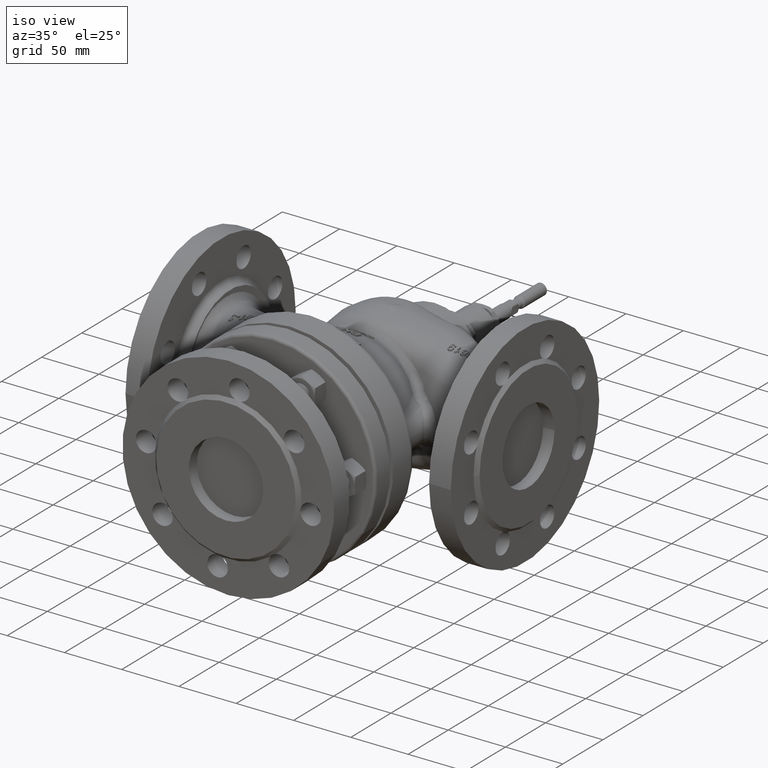
[diagram: clean part render]
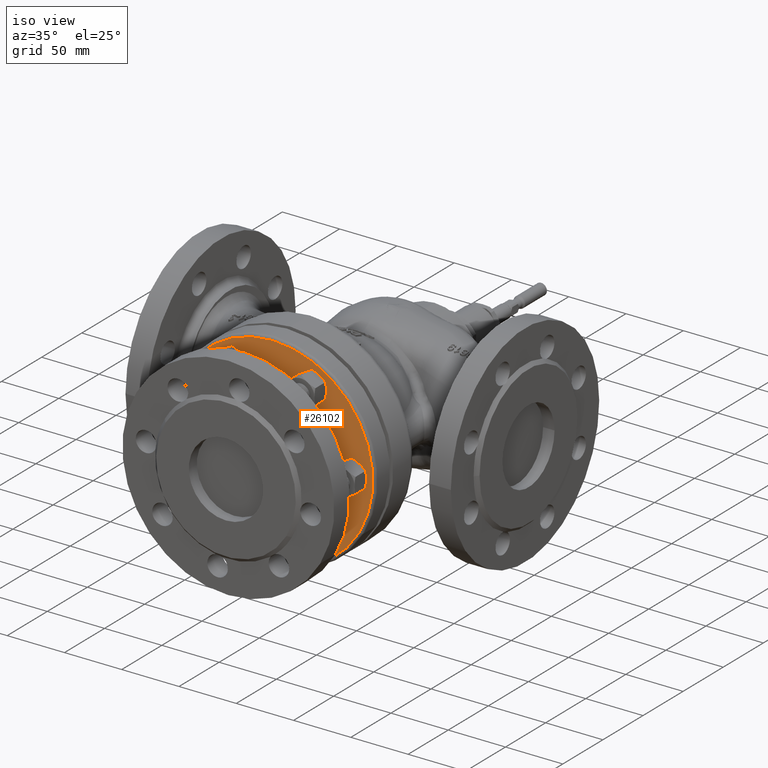
[diagram: same view with one face highlighted and labeled with its STEP entity id]
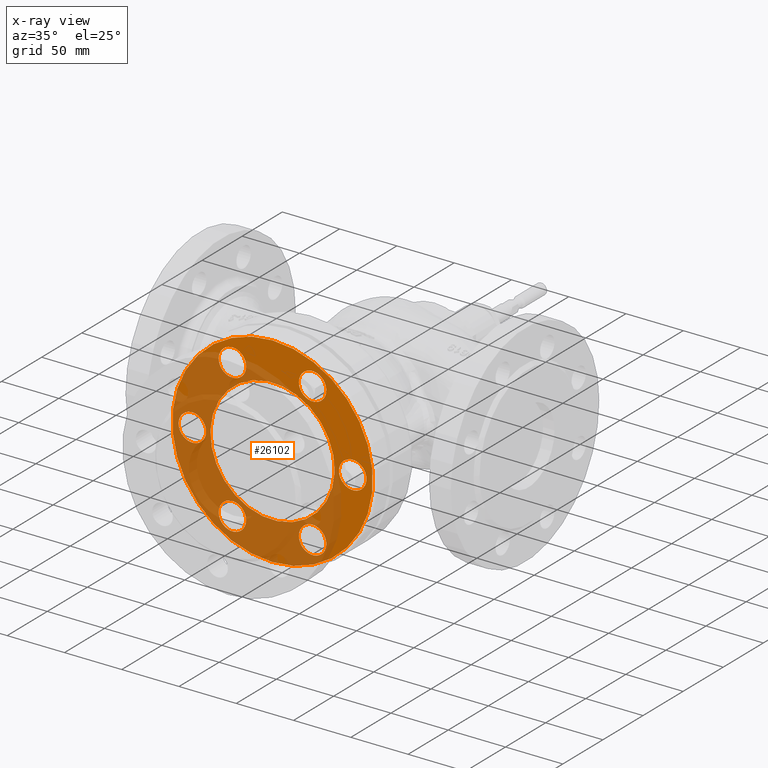
[diagram: x-ray of the same camera — body ghosted, the highlighted face saturated]
A machine part, iso view. The second image highlights one B-rep face of the part: STEP entity #26102.
The next image is the same camera in x-ray: the body ghosted, the highlighted face saturated — about 58% of this face is hidden behind the body in this view.
In plain terms, the highlighted planar face has unit normal (0, 1, -0).
Its self-contained STEP definition (entity closure, byte-faithful):
#108 = CARTESIAN_POINT ( 'NONE',  ( -46.99999999999879200, -112.0000000000000000, -60.62177826491070200 ) ) ;
#457 = DIRECTION ( 'NONE',  ( -0.0000000000000000000, -1.000000000000000000, -0.0000000000000000000 ) ) ;
#525 = CIRCLE ( 'NONE', #46967, 11.99999999999999600 ) ;
#602 = CARTESIAN_POINT ( 'NONE',  ( 22.99999999999836600, -112.0000000000000000, 60.62177826491102200 ) ) ;
#1085 = ORIENTED_EDGE ( 'NONE', *, *, #93543, .F. ) ;
#1916 = CARTESIAN_POINT ( 'NONE',  ( -41.00000000000051200, -112.0000000000000000, 50.22947341949666400 ) ) ;
#2197 = AXIS2_PLACEMENT_3D ( 'NONE', #36738, #134624, #50824 ) ;
#2554 = ORIENTED_EDGE ( 'NONE', *, *, #87627, .F. ) ;
#2987 = EDGE_CURVE ( 'NONE', #159778, #42430, #152738, .T. ) ;
#3666 = ORIENTED_EDGE ( 'NONE', *, *, #105104, .F. ) ;
#4422 = DIRECTION ( 'NONE',  ( -0.0000000000000000000, -1.000000000000000000, 0.0000000000000000000 ) ) ;
#4851 = ORIENTED_EDGE ( 'NONE', *, *, #94597, .F. ) ;
#5176 = AXIS2_PLACEMENT_3D ( 'NONE', #106320, #22536, #120403 ) ;
#5882 = CARTESIAN_POINT ( 'NONE',  ( 34.99999999999836600, -111.9999999999999900, 60.62177826491102200 ) ) ;
#6001 = ORIENTED_EDGE ( 'NONE', *, *, #78870, .F. ) ;
#6507 = DIRECTION ( 'NONE',  ( 0.0000000000000000000, -1.000000000000000000, -0.0000000000000000000 ) ) ;
#6606 = CIRCLE ( 'NONE', #8113, 87.50000000000001400 ) ;
#6634 = DIRECTION ( 'NONE',  ( -1.000000000000000000, 0.0000000000000000000, 0.0000000000000000000 ) ) ;
#7073 = DIRECTION ( 'NONE',  ( -2.506947754853350100E-039, -1.000000000000000000, 1.146559035700334400E-038 ) ) ;
#7307 = CIRCLE ( 'NONE', #158942, 11.99999999999999600 ) ;
#7461 = FACE_BOUND ( 'NONE', #23981, .T. ) ;
#7622 = ORIENTED_EDGE ( 'NONE', *, *, #10779, .T. ) ;
#7652 = CARTESIAN_POINT ( 'NONE',  ( 34.99999999999836600, -111.9999999999999900, 60.62177826491102200 ) ) ;
#8113 = AXIS2_PLACEMENT_3D ( 'NONE', #90843, #7073, #104914 ) ;
#8746 = DIRECTION ( 'NONE',  ( 2.506947754853350100E-039, 1.000000000000000000, -1.146559035700334400E-038 ) ) ;
#9015 = CIRCLE ( 'NONE', #56606, 11.99999999999999600 ) ;
#9018 = VERTEX_POINT ( 'NONE', #112770 ) ;
#9441 = AXIS2_PLACEMENT_3D ( 'NONE', #94495, #10721, #108571 ) ;
#10076 = CIRCLE ( 'NONE', #41329, 11.99999999999999600 ) ;
#10201 = VERTEX_POINT ( 'NONE', #64355 ) ;
#10721 = DIRECTION ( 'NONE',  ( -0.0000000000000000000, -1.000000000000000000, -0.0000000000000000000 ) ) ;
#10779 = EDGE_CURVE ( 'NONE', #94681, #85977, #29843, .T. ) ;
#11093 = DIRECTION ( 'NONE',  ( -0.8660254037847903200, 0.0000000000000000000, 0.4999999999993909300 ) ) ;
#11319 = CARTESIAN_POINT ( 'NONE',  ( -81.99999999999946000, -112.0000000000000000, -7.863154571907671200E-013 ) ) ;
#11722 = CARTESIAN_POINT ( 'NONE',  ( 81.99999999999944600, -112.0000000000000000, 1.359440338077888600E-012 ) ) ;
#12833 = VERTEX_POINT ( 'NONE', #139882 ) ;
#13101 = VERTEX_POINT ( 'NONE', #71353 ) ;
#13480 = VERTEX_POINT ( 'NONE', #48658 ) ;
#13977 = EDGE_CURVE ( 'NONE', #157390, #28926, #167649, .T. ) ;
#14216 = CIRCLE ( 'NONE', #68966, 11.99999999999999600 ) ;
#14502 = EDGE_CURVE ( 'NONE', #42430, #13480, #10076, .T. ) ;
#15874 = EDGE_CURVE ( 'NONE', #85977, #94681, #66937, .T. ) ;
#16148 = CIRCLE ( 'NONE', #26856, 12.00000000000000900 ) ;
#16198 = FACE_BOUND ( 'NONE', #166845, .T. ) ;
#16655 = AXIS2_PLACEMENT_3D ( 'NONE', #34897, #132780, #48984 ) ;
#17767 = CARTESIAN_POINT ( 'NONE',  ( -75.77722283116875700, -112.0000000000000000, 43.74999999994643900 ) ) ;
#17888 = ORIENTED_EDGE ( 'NONE', *, *, #113689, .F. ) ;
#18144 = DIRECTION ( 'NONE',  ( -2.506947754853350100E-039, -1.000000000000000000, 1.146559035700334400E-038 ) ) ;
#18603 = CIRCLE ( 'NONE', #22089, 12.00000000000000000 ) ;
#18849 = EDGE_CURVE ( 'NONE', #119914, #111733, #55870, .T. ) ;
#18902 = CARTESIAN_POINT ( 'NONE',  ( 35.00000000000082400, -111.9999999999999900, -60.62177826490962200 ) ) ;
#19083 = PLANE ( 'NONE',  #132987 ) ;
#19333 = EDGE_CURVE ( 'NONE', #79323, #31594, #42673, .T. ) ;
#19575 = EDGE_CURVE ( 'NONE', #41009, #159778, #71132, .T. ) ;
#19799 = ORIENTED_EDGE ( 'NONE', *, *, #67340, .F. ) ;
#19940 = DIRECTION ( 'NONE',  ( -1.000000000000000000, 0.0000000000000000000, 1.734723475976807700E-015 ) ) ;
#21046 = EDGE_LOOP ( 'NONE', ( #46899, #139596, #69963, #128662, #115450, #161318 ) ) ;
#21315 = DIRECTION ( 'NONE',  ( -0.0000000000000000000, -1.000000000000000000, 0.0000000000000000000 ) ) ;
#21700 = DIRECTION ( 'NONE',  ( -1.000000000000000000, 0.0000000000000000000, 1.734723475976807700E-015 ) ) ;
#22089 = AXIS2_PLACEMENT_3D ( 'NONE', #143515, #59738, #157580 ) ;
#22534 = EDGE_CURVE ( 'NONE', #13480, #26974, #171708, .T. ) ;
#22536 = DIRECTION ( 'NONE',  ( -0.0000000000000000000, -1.000000000000000000, 0.0000000000000000000 ) ) ;
#23981 = EDGE_LOOP ( 'NONE', ( #133127, #133520, #117780, #104564, #6001, #19799 ) ) ;
#24024 = VERTEX_POINT ( 'NONE', #32123 ) ;
#24825 = CIRCLE ( 'NONE', #46418, 12.00000000000000000 ) ;
#25632 = CARTESIAN_POINT ( 'NONE',  ( 35.00000000000082400, -111.9999999999999900, -60.62177826490962200 ) ) ;
#26019 = EDGE_CURVE ( 'NONE', #51356, #73568, #123436, .T. ) ;
#26102 = ADVANCED_FACE ( 'NONE', ( #44620, #16198, #156227, #160626, #119055, #7461, #151876, #114647 ), #19083, .F. ) ;
#26476 = CARTESIAN_POINT ( 'NONE',  ( -35.00000000000038400, -111.9999999999999900, 60.62177826490985700 ) ) ;
#26856 = AXIS2_PLACEMENT_3D ( 'NONE', #131731, #47937, #145792 ) ;
#26974 = VERTEX_POINT ( 'NONE', #109552 ) ;
#27206 = VERTEX_POINT ( 'NONE', #138898 ) ;
#28072 = CARTESIAN_POINT ( 'NONE',  ( -69.99999999999944600, -111.9999999999999900, -9.228728892196613700E-013 ) ) ;
#28444 = AXIS2_PLACEMENT_3D ( 'NONE', #92530, #8746, #106595 ) ;
#28743 = ORIENTED_EDGE ( 'NONE', *, *, #83320, .F. ) ;
#28926 = VERTEX_POINT ( 'NONE', #11319 ) ;
#29166 = DIRECTION ( 'NONE',  ( 0.0000000000000000000, -1.000000000000000000, 0.0000000000000000000 ) ) ;
#29610 = CARTESIAN_POINT ( 'NONE',  ( 34.99999999999836600, -111.9999999999999900, 60.62177826491102200 ) ) ;
#29843 = CIRCLE ( 'NONE', #38921, 54.23563836689044100 ) ;
#30073 = DIRECTION ( 'NONE',  ( -0.0000000000000000000, -1.000000000000000000, -0.0000000000000000000 ) ) ;
#30764 = VERTEX_POINT ( 'NONE', #146951 ) ;
#31594 = VERTEX_POINT ( 'NONE', #1916 ) ;
#32123 = CARTESIAN_POINT ( 'NONE',  ( 47.00000000000082400, -112.0000000000000000, -60.62177826490965800 ) ) ;
#32426 = CARTESIAN_POINT ( 'NONE',  ( 23.00000000000078500, -112.0000000000000000, -60.62177826490958000 ) ) ;
#32935 = DIRECTION ( 'NONE',  ( 0.5000000000000032200, 0.0000000000000000000, 0.8660254037844368200 ) ) ;
#33121 = DIRECTION ( 'NONE',  ( -0.8660254037847903200, 7.903875620164056200E-039, 0.4999999999993908800 ) ) ;
#34025 = CIRCLE ( 'NONE', #145044, 12.00000000000000000 ) ;
#34564 = CIRCLE ( 'NONE', #127843, 11.99999999999999800 ) ;
#34878 = EDGE_CURVE ( 'NONE', #28926, #62398, #24825, .T. ) ;
#34897 = CARTESIAN_POINT ( 'NONE',  ( 69.99999999999944600, -111.9999999999999900, 1.412064909445121000E-012 ) ) ;
#35165 = VERTEX_POINT ( 'NONE', #111991 ) ;
#35231 = CARTESIAN_POINT ( 'NONE',  ( -34.99999999999879200, -112.0000000000000000, -60.62177826491078000 ) ) ;
#35251 = ORIENTED_EDGE ( 'NONE', *, *, #34878, .F. ) ;
#35862 = CARTESIAN_POINT ( 'NONE',  ( -69.99999999999944600, -111.9999999999999900, -9.228728892196613700E-013 ) ) ;
#35932 = EDGE_CURVE ( 'NONE', #35165, #79323, #156101, .T. ) ;
#36192 = EDGE_CURVE ( 'NONE', #87908, #41009, #7307, .T. ) ;
#36502 = DIRECTION ( 'NONE',  ( 0.0000000000000000000, -1.000000000000000000, 0.0000000000000000000 ) ) ;
#36738 = CARTESIAN_POINT ( 'NONE',  ( -35.00000000000038400, -111.9999999999999900, 60.62177826490985700 ) ) ;
#38410 = VERTEX_POINT ( 'NONE', #79348 ) ;
#38921 = AXIS2_PLACEMENT_3D ( 'NONE', #178723, #94871, #11093 ) ;
#39696 = DIRECTION ( 'NONE',  ( 0.5000000000000027800, 0.0000000000000000000, 0.8660254037844370400 ) ) ;
#40236 = AXIS2_PLACEMENT_3D ( 'NONE', #35231, #133117, #49318 ) ;
#40550 = DIRECTION ( 'NONE',  ( -0.5000000000000103300, 0.0000000000000000000, -0.8660254037844326000 ) ) ;
#41009 = VERTEX_POINT ( 'NONE', #108 ) ;
#41329 = AXIS2_PLACEMENT_3D ( 'NONE', #148949, #65152, #163001 ) ;
#42165 = DIRECTION ( 'NONE',  ( 0.4999999999999912800, 0.0000000000000000000, -0.8660254037844437000 ) ) ;
#42430 = VERTEX_POINT ( 'NONE', #115475 ) ;
#42673 = CIRCLE ( 'NONE', #175102, 11.99999999999999800 ) ;
#43139 = EDGE_CURVE ( 'NONE', #10201, #35165, #120861, .T. ) ;
#43396 = EDGE_CURVE ( 'NONE', #26974, #87908, #107690, .T. ) ;
#43689 = DIRECTION ( 'NONE',  ( -1.000000000000000000, 0.0000000000000000000, 0.0000000000000000000 ) ) ;
#43886 = CARTESIAN_POINT ( 'NONE',  ( 69.99999999999944600, -111.9999999999999900, 1.412064909445121000E-012 ) ) ;
#44620 = FACE_BOUND ( 'NONE', #54913, .T. ) ;
#45603 = AXIS2_PLACEMENT_3D ( 'NONE', #82796, #180698, #96830 ) ;
#45731 = CIRCLE ( 'NONE', #138300, 11.99999999999999600 ) ;
#45873 = ORIENTED_EDGE ( 'NONE', *, *, #55534, .T. ) ;
#46116 = ORIENTED_EDGE ( 'NONE', *, *, #61657, .F. ) ;
#46418 = AXIS2_PLACEMENT_3D ( 'NONE', #153583, #69795, #167656 ) ;
#46899 = ORIENTED_EDGE ( 'NONE', *, *, #14502, .F. ) ;
#46935 = EDGE_CURVE ( 'NONE', #73568, #166094, #96595, .T. ) ;
#46967 = AXIS2_PLACEMENT_3D ( 'NONE', #174246, #90410, #6634 ) ;
#47357 = ORIENTED_EDGE ( 'NONE', *, *, #15874, .T. ) ;
#47937 = DIRECTION ( 'NONE',  ( 0.0000000000000000000, -1.000000000000000000, 0.0000000000000000000 ) ) ;
#48318 = CARTESIAN_POINT ( 'NONE',  ( -40.99999999999874200, -112.0000000000000000, -50.22947341949745200 ) ) ;
#48658 = CARTESIAN_POINT ( 'NONE',  ( -22.99999999999878900, -112.0000000000000000, -60.62177826491086600 ) ) ;
#48913 = CARTESIAN_POINT ( 'NONE',  ( 35.00000000000082400, -111.9999999999999900, -60.62177826490962200 ) ) ;
#48984 = DIRECTION ( 'NONE',  ( -0.5000000000000005600, 0.0000000000000000000, 0.8660254037844383700 ) ) ;
#49318 = DIRECTION ( 'NONE',  ( -1.000000000000000000, 0.0000000000000000000, 6.938893903907226000E-015 ) ) ;
#49954 = DIRECTION ( 'NONE',  ( 0.4999999999999935600, 0.0000000000000000000, -0.8660254037844423700 ) ) ;
#50692 = VERTEX_POINT ( 'NONE', #51608 ) ;
#50824 = DIRECTION ( 'NONE',  ( -0.5000000000000092100, 0.0000000000000000000, -0.8660254037844332700 ) ) ;
#51356 = VERTEX_POINT ( 'NONE', #92013 ) ;
#51608 = CARTESIAN_POINT ( 'NONE',  ( 29.00000000000088800, -112.0000000000000000, -50.22947341949631600 ) ) ;
#52901 = EDGE_CURVE ( 'NONE', #30764, #10201, #116105, .T. ) ;
#54817 = CIRCLE ( 'NONE', #171564, 12.00000000000000200 ) ;
#54913 = EDGE_LOOP ( 'NONE', ( #67424, #151267, #4851, #17888, #96667, #85352 ) ) ;
#55331 = CARTESIAN_POINT ( 'NONE',  ( 40.99999999999840100, -112.0000000000000000, 50.22947341949773700 ) ) ;
#55534 = EDGE_CURVE ( 'NONE', #111733, #119914, #6606, .T. ) ;
#55789 = EDGE_CURVE ( 'NONE', #62398, #51356, #72218, .T. ) ;
#55870 = CIRCLE ( 'NONE', #146924, 87.50000000000001400 ) ;
#56368 = CARTESIAN_POINT ( 'NONE',  ( 34.99999999999836600, -112.0000000000000000, 60.62177826491102200 ) ) ;
#56577 = ORIENTED_EDGE ( 'NONE', *, *, #154347, .F. ) ;
#56606 = AXIS2_PLACEMENT_3D ( 'NONE', #29610, #127508, #43689 ) ;
#57781 = CARTESIAN_POINT ( 'NONE',  ( 41.00000000000086700, -112.0000000000000000, -50.22947341949638700 ) ) ;
#57980 = DIRECTION ( 'NONE',  ( -0.4999999999999981700, 0.0000000000000000000, 0.8660254037844397100 ) ) ;
#58259 = ORIENTED_EDGE ( 'NONE', *, *, #26019, .F. ) ;
#58780 = CARTESIAN_POINT ( 'NONE',  ( 69.99999999999944600, -111.9999999999999900, 1.412064909445121000E-012 ) ) ;
#59738 = DIRECTION ( 'NONE',  ( -0.0000000000000000000, -1.000000000000000000, -0.0000000000000000000 ) ) ;
#60245 = CARTESIAN_POINT ( 'NONE',  ( -57.99999999999945300, -112.0000000000000000, -1.056446596869875500E-012 ) ) ;
#61403 = EDGE_CURVE ( 'NONE', #77398, #154143, #45731, .T. ) ;
#61579 = ORIENTED_EDGE ( 'NONE', *, *, #94856, .F. ) ;
#61657 = EDGE_CURVE ( 'NONE', #27206, #149942, #120183, .T. ) ;
#61781 = CARTESIAN_POINT ( 'NONE',  ( 69.99999999999944600, -111.9999999999999900, 1.412064909445121000E-012 ) ) ;
#62398 = VERTEX_POINT ( 'NONE', #171691 ) ;
#62976 = DIRECTION ( 'NONE',  ( 0.5000000000000050000, 0.0000000000000000000, 0.8660254037844357100 ) ) ;
#63827 = EDGE_CURVE ( 'NONE', #149942, #87588, #89423, .T. ) ;
#64355 = CARTESIAN_POINT ( 'NONE',  ( -29.00000000000027000, -112.0000000000000000, 71.01408311032305700 ) ) ;
#64363 = VERTEX_POINT ( 'NONE', #55331 ) ;
#65152 = DIRECTION ( 'NONE',  ( -0.0000000000000000000, -1.000000000000000000, 0.0000000000000000000 ) ) ;
#66562 = AXIS2_PLACEMENT_3D ( 'NONE', #35862, #133750, #49954 ) ;
#66881 = CIRCLE ( 'NONE', #66562, 11.99999999999999800 ) ;
#66937 = CIRCLE ( 'NONE', #28444, 54.23563836689044100 ) ;
#67340 = EDGE_CURVE ( 'NONE', #31594, #162007, #34564, .T. ) ;
#67424 = ORIENTED_EDGE ( 'NONE', *, *, #61403, .F. ) ;
#68966 = AXIS2_PLACEMENT_3D ( 'NONE', #5882, #103726, #19940 ) ;
#69334 = CIRCLE ( 'NONE', #16655, 11.99999999999999600 ) ;
#69795 = DIRECTION ( 'NONE',  ( -0.0000000000000000000, -1.000000000000000000, 0.0000000000000000000 ) ) ;
#69963 = ORIENTED_EDGE ( 'NONE', *, *, #19575, .F. ) ;
#70429 = DIRECTION ( 'NONE',  ( 1.000000000000000000, 0.0000000000000000000, 0.0000000000000000000 ) ) ;
#71132 = CIRCLE ( 'NONE', #40236, 12.00000000000000400 ) ;
#71353 = CARTESIAN_POINT ( 'NONE',  ( 28.99999999999834800, -112.0000000000000000, 50.22947341949777200 ) ) ;
#72218 = CIRCLE ( 'NONE', #45603, 11.99999999999999800 ) ;
#72377 = DIRECTION ( 'NONE',  ( 0.0000000000000000000, -1.000000000000000000, 0.0000000000000000000 ) ) ;
#72839 = DIRECTION ( 'NONE',  ( -0.4999999999999981700, 0.0000000000000000000, 0.8660254037844397100 ) ) ;
#73301 = ORIENTED_EDGE ( 'NONE', *, *, #107242, .F. ) ;
#73568 = VERTEX_POINT ( 'NONE', #60245 ) ;
#73781 = AXIS2_PLACEMENT_3D ( 'NONE', #56368, #154212, #70429 ) ;
#75331 = DIRECTION ( 'NONE',  ( 0.0000000000000000000, -1.000000000000000000, -0.0000000000000000000 ) ) ;
#75349 = EDGE_CURVE ( 'NONE', #87588, #38410, #69334, .T. ) ;
#75467 = CARTESIAN_POINT ( 'NONE',  ( -35.00000000000038400, -111.9999999999999900, 60.62177826490985700 ) ) ;
#75844 = DIRECTION ( 'NONE',  ( -0.4999999999999960600, 0.0000000000000000000, 0.8660254037844409300 ) ) ;
#76434 = EDGE_LOOP ( 'NONE', ( #157884, #35251, #136367, #164000, #160694, #58259 ) ) ;
#76547 = CARTESIAN_POINT ( 'NONE',  ( -34.99999999999879200, -111.9999999999999900, -60.62177826491078000 ) ) ;
#76717 = AXIS2_PLACEMENT_3D ( 'NONE', #88188, #4422, #102255 ) ;
#77398 = VERTEX_POINT ( 'NONE', #166777 ) ;
#78870 = EDGE_CURVE ( 'NONE', #162007, #30764, #165490, .T. ) ;
#79323 = VERTEX_POINT ( 'NONE', #98617 ) ;
#79348 = CARTESIAN_POINT ( 'NONE',  ( 63.99999999999947400, -112.0000000000000000, 10.39230484541468700 ) ) ;
#79882 = CIRCLE ( 'NONE', #97060, 11.99999999999999500 ) ;
#82291 = VERTEX_POINT ( 'NONE', #90140 ) ;
#82396 = DIRECTION ( 'NONE',  ( -0.0000000000000000000, -1.000000000000000000, 0.0000000000000000000 ) ) ;
#82796 = CARTESIAN_POINT ( 'NONE',  ( -69.99999999999944600, -111.9999999999999900, -9.228728892196613700E-013 ) ) ;
#83149 = AXIS2_PLACEMENT_3D ( 'NONE', #58780, #156614, #72839 ) ;
#83320 = EDGE_CURVE ( 'NONE', #38410, #105548, #34025, .T. ) ;
#84145 = EDGE_CURVE ( 'NONE', #166094, #157390, #66881, .T. ) ;
#84251 = CARTESIAN_POINT ( 'NONE',  ( 34.99999999999836600, -111.9999999999999900, 60.62177826491102200 ) ) ;
#85352 = ORIENTED_EDGE ( 'NONE', *, *, #118792, .F. ) ;
#85977 = VERTEX_POINT ( 'NONE', #178537 ) ;
#86367 = AXIS2_PLACEMENT_3D ( 'NONE', #26476, #124376, #40550 ) ;
#86838 = EDGE_CURVE ( 'NONE', #118823, #50692, #18603, .T. ) ;
#87363 = EDGE_CURVE ( 'NONE', #9018, #77398, #14216, .T. ) ;
#87588 = VERTEX_POINT ( 'NONE', #106155 ) ;
#87627 = EDGE_CURVE ( 'NONE', #82291, #27206, #79882, .T. ) ;
#87908 = VERTEX_POINT ( 'NONE', #48318 ) ;
#88188 = CARTESIAN_POINT ( 'NONE',  ( -69.99999999999944600, -111.9999999999999900, -9.228728892196613700E-013 ) ) ;
#89423 = CIRCLE ( 'NONE', #9441, 12.00000000000000000 ) ;
#89504 = DIRECTION ( 'NONE',  ( -0.5000000000000103300, 0.0000000000000000000, -0.8660254037844326000 ) ) ;
#90140 = CARTESIAN_POINT ( 'NONE',  ( 63.99999999999941700, -112.0000000000000000, -10.39230484541188000 ) ) ;
#90275 = CARTESIAN_POINT ( 'NONE',  ( -35.00000000000038400, -111.9999999999999900, 60.62177826490985700 ) ) ;
#90410 = DIRECTION ( 'NONE',  ( -0.0000000000000000000, -1.000000000000000000, -0.0000000000000000000 ) ) ;
#90569 = CIRCLE ( 'NONE', #83149, 12.00000000000000000 ) ;
#90594 = DIRECTION ( 'NONE',  ( 1.000000000000000000, 0.0000000000000000000, -8.673617379884038600E-015 ) ) ;
#90843 = CARTESIAN_POINT ( 'NONE',  ( 4.024558463747165400E-013, -112.0000000000000000, -2.697495006043932700E-013 ) ) ;
#90944 = VERTEX_POINT ( 'NONE', #156213 ) ;
#92013 = CARTESIAN_POINT ( 'NONE',  ( -63.99999999999954500, -112.0000000000000000, -10.39230484541423900 ) ) ;
#92530 = CARTESIAN_POINT ( 'NONE',  ( 4.024558463747165400E-013, -112.0000000000000000, -2.697495006043932700E-013 ) ) ;
#93543 = EDGE_CURVE ( 'NONE', #12833, #90944, #16148, .T. ) ;
#94495 = CARTESIAN_POINT ( 'NONE',  ( 69.99999999999944600, -111.9999999999999900, 1.412064909445121000E-012 ) ) ;
#94597 = EDGE_CURVE ( 'NONE', #109978, #9018, #136574, .T. ) ;
#94681 = VERTEX_POINT ( 'NONE', #141958 ) ;
#94856 = EDGE_CURVE ( 'NONE', #105548, #82291, #90569, .T. ) ;
#94871 = DIRECTION ( 'NONE',  ( 2.506947754853350100E-039, 1.000000000000000000, -1.146559035700334400E-038 ) ) ;
#96595 = CIRCLE ( 'NONE', #109910, 11.99999999999999800 ) ;
#96667 = ORIENTED_EDGE ( 'NONE', *, *, #102135, .F. ) ;
#96830 = DIRECTION ( 'NONE',  ( 0.4999999999999959500, 0.0000000000000000000, -0.8660254037844410400 ) ) ;
#97060 = AXIS2_PLACEMENT_3D ( 'NONE', #61781, #159618, #75844 ) ;
#98096 = AXIS2_PLACEMENT_3D ( 'NONE', #120317, #36502, #134390 ) ;
#98303 = DIRECTION ( 'NONE',  ( -1.000000000000000000, 0.0000000000000000000, -1.734723475976807700E-015 ) ) ;
#98617 = CARTESIAN_POINT ( 'NONE',  ( -47.00000000000039100, -112.0000000000000000, 60.62177826490998500 ) ) ;
#101417 = ORIENTED_EDGE ( 'NONE', *, *, #86838, .F. ) ;
#101921 = CARTESIAN_POINT ( 'NONE',  ( 4.024558463747165400E-013, -112.0000000000000000, -2.697495006043932700E-013 ) ) ;
#102135 = EDGE_CURVE ( 'NONE', #13101, #64363, #525, .T. ) ;
#102255 = DIRECTION ( 'NONE',  ( 0.4999999999999923900, 0.0000000000000000000, -0.8660254037844431500 ) ) ;
#102371 = EDGE_LOOP ( 'NONE', ( #47357, #7622 ) ) ;
#103726 = DIRECTION ( 'NONE',  ( -0.0000000000000000000, -1.000000000000000000, -0.0000000000000000000 ) ) ;
#104349 = DIRECTION ( 'NONE',  ( -0.5000000000000103300, 0.0000000000000000000, -0.8660254037844326000 ) ) ;
#104564 = ORIENTED_EDGE ( 'NONE', *, *, #52901, .F. ) ;
#104914 = DIRECTION ( 'NONE',  ( -0.8660254037847903200, 0.0000000000000000000, 0.4999999999993909900 ) ) ;
#105098 = CARTESIAN_POINT ( 'NONE',  ( -34.99999999999879200, -111.9999999999999900, -60.62177826491078000 ) ) ;
#105104 = EDGE_CURVE ( 'NONE', #90944, #24024, #133943, .T. ) ;
#105492 = DIRECTION ( 'NONE',  ( -0.0000000000000000000, -1.000000000000000000, -0.0000000000000000000 ) ) ;
#105548 = VERTEX_POINT ( 'NONE', #121818 ) ;
#106155 = CARTESIAN_POINT ( 'NONE',  ( 75.99999999999946000, -112.0000000000000000, 10.39230484541467300 ) ) ;
#106320 = CARTESIAN_POINT ( 'NONE',  ( -34.99999999999879200, -111.9999999999999900, -60.62177826491078000 ) ) ;
#106595 = DIRECTION ( 'NONE',  ( -0.8660254037847903200, 0.0000000000000000000, 0.4999999999993909300 ) ) ;
#107242 = EDGE_CURVE ( 'NONE', #24024, #118823, #149196, .T. ) ;
#107690 = CIRCLE ( 'NONE', #116863, 11.99999999999999600 ) ;
#108571 = DIRECTION ( 'NONE',  ( -0.4999999999999958400, 0.0000000000000000000, 0.8660254037844410400 ) ) ;
#109139 = AXIS2_PLACEMENT_3D ( 'NONE', #113882, #30073, #127964 ) ;
#109552 = CARTESIAN_POINT ( 'NONE',  ( -28.99999999999869600, -112.0000000000000000, -50.22947341949757300 ) ) ;
#109910 = AXIS2_PLACEMENT_3D ( 'NONE', #28072, #125960, #42165 ) ;
#109978 = VERTEX_POINT ( 'NONE', #119480 ) ;
#111733 = VERTEX_POINT ( 'NONE', #17767 ) ;
#111991 = CARTESIAN_POINT ( 'NONE',  ( -41.00000000000024200, -112.0000000000000000, 71.01408311032321300 ) ) ;
#112373 = AXIS2_PLACEMENT_3D ( 'NONE', #18902, #116751, #32935 ) ;
#112770 = CARTESIAN_POINT ( 'NONE',  ( 40.99999999999838700, -112.0000000000000000, 71.01408311032426500 ) ) ;
#112989 = CARTESIAN_POINT ( 'NONE',  ( 69.99999999999944600, -112.0000000000000000, 1.412064909445121000E-012 ) ) ;
#113689 = EDGE_CURVE ( 'NONE', #64363, #109978, #149235, .T. ) ;
#113882 = CARTESIAN_POINT ( 'NONE',  ( 35.00000000000082400, -111.9999999999999900, -60.62177826490962200 ) ) ;
#114647 = FACE_BOUND ( 'NONE', #21046, .T. ) ;
#115450 = ORIENTED_EDGE ( 'NONE', *, *, #43396, .F. ) ;
#115475 = CARTESIAN_POINT ( 'NONE',  ( -28.99999999999884200, -112.0000000000000000, -71.01408311032409400 ) ) ;
#116003 = DIRECTION ( 'NONE',  ( -0.8660254037847903200, 0.0000000000000000000, 0.4999999999993909900 ) ) ;
#116105 = CIRCLE ( 'NONE', #2197, 11.99999999999999600 ) ;
#116751 = DIRECTION ( 'NONE',  ( -0.0000000000000000000, -1.000000000000000000, -0.0000000000000000000 ) ) ;
#116863 = AXIS2_PLACEMENT_3D ( 'NONE', #166182, #82396, #180301 ) ;
#116935 = DIRECTION ( 'NONE',  ( 2.506947754857786300E-039, 1.000000000000000000, -1.146559035700590400E-038 ) ) ;
#117000 = ORIENTED_EDGE ( 'NONE', *, *, #18849, .T. ) ;
#117780 = ORIENTED_EDGE ( 'NONE', *, *, #43139, .F. ) ;
#118792 = EDGE_CURVE ( 'NONE', #154143, #13101, #9015, .T. ) ;
#118823 = VERTEX_POINT ( 'NONE', #57781 ) ;
#119055 = FACE_BOUND ( 'NONE', #102371, .T. ) ;
#119176 = DIRECTION ( 'NONE',  ( 1.000000000000000000, 0.0000000000000000000, -6.938893903907230700E-015 ) ) ;
#119480 = CARTESIAN_POINT ( 'NONE',  ( 46.99999999999837300, -112.0000000000000000, 60.62177826491102200 ) ) ;
#119914 = VERTEX_POINT ( 'NONE', #123887 ) ;
#120183 = CIRCLE ( 'NONE', #147698, 12.00000000000000200 ) ;
#120317 = CARTESIAN_POINT ( 'NONE',  ( -35.00000000000038400, -112.0000000000000000, 60.62177826490985700 ) ) ;
#120403 = DIRECTION ( 'NONE',  ( 1.000000000000000000, 0.0000000000000000000, -6.938893903907230700E-015 ) ) ;
#120861 = CIRCLE ( 'NONE', #98096, 12.00000000000000900 ) ;
#121818 = CARTESIAN_POINT ( 'NONE',  ( 57.99999999999945300, -112.0000000000000000, 1.462371890248448400E-012 ) ) ;
#122626 = ORIENTED_EDGE ( 'NONE', *, *, #124069, .F. ) ;
#123436 = CIRCLE ( 'NONE', #76717, 12.00000000000000000 ) ;
#123518 = DIRECTION ( 'NONE',  ( -0.0000000000000000000, -1.000000000000000000, -0.0000000000000000000 ) ) ;
#123887 = CARTESIAN_POINT ( 'NONE',  ( 75.77722283116958100, -112.0000000000000000, -43.74999999994697200 ) ) ;
#124069 = EDGE_CURVE ( 'NONE', #50692, #141768, #54817, .T. ) ;
#124115 = EDGE_LOOP ( 'NONE', ( #45873, #117000 ) ) ;
#124376 = DIRECTION ( 'NONE',  ( 0.0000000000000000000, -1.000000000000000000, -0.0000000000000000000 ) ) ;
#125960 = DIRECTION ( 'NONE',  ( -0.0000000000000000000, -1.000000000000000000, 0.0000000000000000000 ) ) ;
#127064 = DIRECTION ( 'NONE',  ( 0.4999999999999980600, 0.0000000000000000000, -0.8660254037844397100 ) ) ;
#127508 = DIRECTION ( 'NONE',  ( -0.0000000000000000000, -1.000000000000000000, -0.0000000000000000000 ) ) ;
#127843 = AXIS2_PLACEMENT_3D ( 'NONE', #75467, #173345, #89504 ) ;
#127964 = DIRECTION ( 'NONE',  ( 0.5000000000000056600, 0.0000000000000000000, 0.8660254037844353800 ) ) ;
#128662 = ORIENTED_EDGE ( 'NONE', *, *, #36192, .F. ) ;
#129743 = CARTESIAN_POINT ( 'NONE',  ( -63.99999999999934600, -112.0000000000000000, 10.39230484541232300 ) ) ;
#130822 = AXIS2_PLACEMENT_3D ( 'NONE', #159103, #75331, #173208 ) ;
#131731 = CARTESIAN_POINT ( 'NONE',  ( 35.00000000000082400, -112.0000000000000000, -60.62177826490962200 ) ) ;
#132780 = DIRECTION ( 'NONE',  ( -0.0000000000000000000, -1.000000000000000000, -0.0000000000000000000 ) ) ;
#132987 = AXIS2_PLACEMENT_3D ( 'NONE', #144460, #116935, #33121 ) ;
#133117 = DIRECTION ( 'NONE',  ( 0.0000000000000000000, -1.000000000000000000, 0.0000000000000000000 ) ) ;
#133127 = ORIENTED_EDGE ( 'NONE', *, *, #19333, .F. ) ;
#133520 = ORIENTED_EDGE ( 'NONE', *, *, #35932, .F. ) ;
#133750 = DIRECTION ( 'NONE',  ( -0.0000000000000000000, -1.000000000000000000, 0.0000000000000000000 ) ) ;
#133805 = AXIS2_PLACEMENT_3D ( 'NONE', #25632, #123518, #39696 ) ;
#133943 = CIRCLE ( 'NONE', #109139, 11.99999999999999800 ) ;
#134390 = DIRECTION ( 'NONE',  ( 0.5000000000000098800, 0.0000000000000000000, 0.8660254037844330500 ) ) ;
#134624 = DIRECTION ( 'NONE',  ( 0.0000000000000000000, -1.000000000000000000, -0.0000000000000000000 ) ) ;
#136367 = ORIENTED_EDGE ( 'NONE', *, *, #13977, .F. ) ;
#136574 = CIRCLE ( 'NONE', #73781, 12.00000000000000400 ) ;
#138280 = AXIS2_PLACEMENT_3D ( 'NONE', #105098, #21315, #119176 ) ;
#138300 = AXIS2_PLACEMENT_3D ( 'NONE', #84251, #457, #98303 ) ;
#138898 = CARTESIAN_POINT ( 'NONE',  ( 75.99999999999943200, -112.0000000000000000, -10.39230484541186800 ) ) ;
#139596 = ORIENTED_EDGE ( 'NONE', *, *, #2987, .F. ) ;
#139882 = CARTESIAN_POINT ( 'NONE',  ( 29.00000000000077800, -112.0000000000000000, -71.01408311032287200 ) ) ;
#141757 = DIRECTION ( 'NONE',  ( -0.0000000000000000000, -1.000000000000000000, -0.0000000000000000000 ) ) ;
#141768 = VERTEX_POINT ( 'NONE', #32426 ) ;
#141958 = CARTESIAN_POINT ( 'NONE',  ( 46.96944061621256600, -111.9999999999999900, -27.11781918341245000 ) ) ;
#143515 = CARTESIAN_POINT ( 'NONE',  ( 35.00000000000082400, -111.9999999999999900, -60.62177826490962200 ) ) ;
#144460 = CARTESIAN_POINT ( 'NONE',  ( 24.73151143341200600, -112.0000000000000000, 42.83623435070879300 ) ) ;
#145044 = AXIS2_PLACEMENT_3D ( 'NONE', #43886, #141757, #57980 ) ;
#145792 = DIRECTION ( 'NONE',  ( -0.5000000000000038900, 0.0000000000000000000, -0.8660254037844363800 ) ) ;
#146766 = DIRECTION ( 'NONE',  ( -0.0000000000000000000, -1.000000000000000000, -0.0000000000000000000 ) ) ;
#146924 = AXIS2_PLACEMENT_3D ( 'NONE', #101921, #18144, #116003 ) ;
#146951 = CARTESIAN_POINT ( 'NONE',  ( -23.00000000000034800, -112.0000000000000000, 60.62177826490973600 ) ) ;
#147698 = AXIS2_PLACEMENT_3D ( 'NONE', #112989, #29166, #127064 ) ;
#148949 = CARTESIAN_POINT ( 'NONE',  ( -34.99999999999879200, -111.9999999999999900, -60.62177826491078000 ) ) ;
#149196 = CIRCLE ( 'NONE', #133805, 12.00000000000000000 ) ;
#149235 = CIRCLE ( 'NONE', #179628, 11.99999999999999600 ) ;
#149942 = VERTEX_POINT ( 'NONE', #11722 ) ;
#151267 = ORIENTED_EDGE ( 'NONE', *, *, #87363, .F. ) ;
#151876 = FACE_BOUND ( 'NONE', #76434, .T. ) ;
#152738 = CIRCLE ( 'NONE', #138280, 11.99999999999999600 ) ;
#153583 = CARTESIAN_POINT ( 'NONE',  ( -69.99999999999944600, -111.9999999999999900, -9.228728892196613700E-013 ) ) ;
#154143 = VERTEX_POINT ( 'NONE', #602 ) ;
#154212 = DIRECTION ( 'NONE',  ( 0.0000000000000000000, -1.000000000000000000, 0.0000000000000000000 ) ) ;
#154347 = EDGE_CURVE ( 'NONE', #141768, #12833, #161197, .T. ) ;
#155263 = CARTESIAN_POINT ( 'NONE',  ( -40.99999999999888400, -112.0000000000000000, -71.01408311032399500 ) ) ;
#156101 = CIRCLE ( 'NONE', #130822, 11.99999999999999800 ) ;
#156152 = CARTESIAN_POINT ( 'NONE',  ( -69.99999999999944600, -112.0000000000000000, -9.228728892196613700E-013 ) ) ;
#156213 = CARTESIAN_POINT ( 'NONE',  ( 41.00000000000075300, -112.0000000000000000, -71.01408311032292900 ) ) ;
#156227 = FACE_BOUND ( 'NONE', #176759, .T. ) ;
#156614 = DIRECTION ( 'NONE',  ( -0.0000000000000000000, -1.000000000000000000, -0.0000000000000000000 ) ) ;
#157358 = AXIS2_PLACEMENT_3D ( 'NONE', #156152, #72377, #170260 ) ;
#157390 = VERTEX_POINT ( 'NONE', #180071 ) ;
#157580 = DIRECTION ( 'NONE',  ( 0.5000000000000038900, 0.0000000000000000000, 0.8660254037844364900 ) ) ;
#157884 = ORIENTED_EDGE ( 'NONE', *, *, #55789, .F. ) ;
#158942 = AXIS2_PLACEMENT_3D ( 'NONE', #76547, #174435, #90594 ) ;
#159103 = CARTESIAN_POINT ( 'NONE',  ( -35.00000000000038400, -111.9999999999999900, 60.62177826490985700 ) ) ;
#159618 = DIRECTION ( 'NONE',  ( -0.0000000000000000000, -1.000000000000000000, -0.0000000000000000000 ) ) ;
#159778 = VERTEX_POINT ( 'NONE', #155263 ) ;
#160626 = FACE_OUTER_BOUND ( 'NONE', #124115, .T. ) ;
#160694 = ORIENTED_EDGE ( 'NONE', *, *, #46935, .F. ) ;
#161197 = CIRCLE ( 'NONE', #112373, 12.00000000000000400 ) ;
#161318 = ORIENTED_EDGE ( 'NONE', *, *, #22534, .F. ) ;
#162007 = VERTEX_POINT ( 'NONE', #180379 ) ;
#163001 = DIRECTION ( 'NONE',  ( 1.000000000000000000, 0.0000000000000000000, -6.938893903907230700E-015 ) ) ;
#164000 = ORIENTED_EDGE ( 'NONE', *, *, #84145, .F. ) ;
#165490 = CIRCLE ( 'NONE', #86367, 11.99999999999999800 ) ;
#166094 = VERTEX_POINT ( 'NONE', #129743 ) ;
#166182 = CARTESIAN_POINT ( 'NONE',  ( -34.99999999999879200, -111.9999999999999900, -60.62177826491078000 ) ) ;
#166777 = CARTESIAN_POINT ( 'NONE',  ( 28.99999999999835500, -112.0000000000000000, 71.01408311032426500 ) ) ;
#166845 = EDGE_LOOP ( 'NONE', ( #73301, #3666, #1085, #56577, #122626, #101417 ) ) ;
#167649 = CIRCLE ( 'NONE', #157358, 12.00000000000000500 ) ;
#167656 = DIRECTION ( 'NONE',  ( 0.4999999999999900100, 0.0000000000000000000, -0.8660254037844444800 ) ) ;
#170260 = DIRECTION ( 'NONE',  ( -0.4999999999999921700, 0.0000000000000000000, 0.8660254037844430400 ) ) ;
#171564 = AXIS2_PLACEMENT_3D ( 'NONE', #48913, #146766, #62976 ) ;
#171691 = CARTESIAN_POINT ( 'NONE',  ( -75.99999999999954500, -112.0000000000000000, -10.39230484541414200 ) ) ;
#171708 = CIRCLE ( 'NONE', #5176, 11.99999999999999600 ) ;
#172511 = ORIENTED_EDGE ( 'NONE', *, *, #75349, .F. ) ;
#173208 = DIRECTION ( 'NONE',  ( -0.5000000000000085500, 0.0000000000000000000, -0.8660254037844337100 ) ) ;
#173345 = DIRECTION ( 'NONE',  ( 0.0000000000000000000, -1.000000000000000000, -0.0000000000000000000 ) ) ;
#174246 = CARTESIAN_POINT ( 'NONE',  ( 34.99999999999836600, -111.9999999999999900, 60.62177826491102200 ) ) ;
#174435 = DIRECTION ( 'NONE',  ( -0.0000000000000000000, -1.000000000000000000, 0.0000000000000000000 ) ) ;
#175102 = AXIS2_PLACEMENT_3D ( 'NONE', #90275, #6507, #104349 ) ;
#176759 = EDGE_LOOP ( 'NONE', ( #172511, #181180, #46116, #2554, #61579, #28743 ) ) ;
#178537 = CARTESIAN_POINT ( 'NONE',  ( -46.96944061621175600, -111.9999999999999900, 27.11781918341191000 ) ) ;
#178723 = CARTESIAN_POINT ( 'NONE',  ( 4.024558463747165400E-013, -112.0000000000000000, -2.697495006043932700E-013 ) ) ;
#179628 = AXIS2_PLACEMENT_3D ( 'NONE', #7652, #105492, #21700 ) ;
#180071 = CARTESIAN_POINT ( 'NONE',  ( -75.99999999999936100, -112.0000000000000000, 10.39230484541239500 ) ) ;
#180301 = DIRECTION ( 'NONE',  ( 1.000000000000000000, 0.0000000000000000000, -6.938893903907230700E-015 ) ) ;
#180379 = CARTESIAN_POINT ( 'NONE',  ( -29.00000000000052600, -112.0000000000000000, 50.22947341949651400 ) ) ;
#180698 = DIRECTION ( 'NONE',  ( -0.0000000000000000000, -1.000000000000000000, 0.0000000000000000000 ) ) ;
#181180 = ORIENTED_EDGE ( 'NONE', *, *, #63827, .F. ) ;